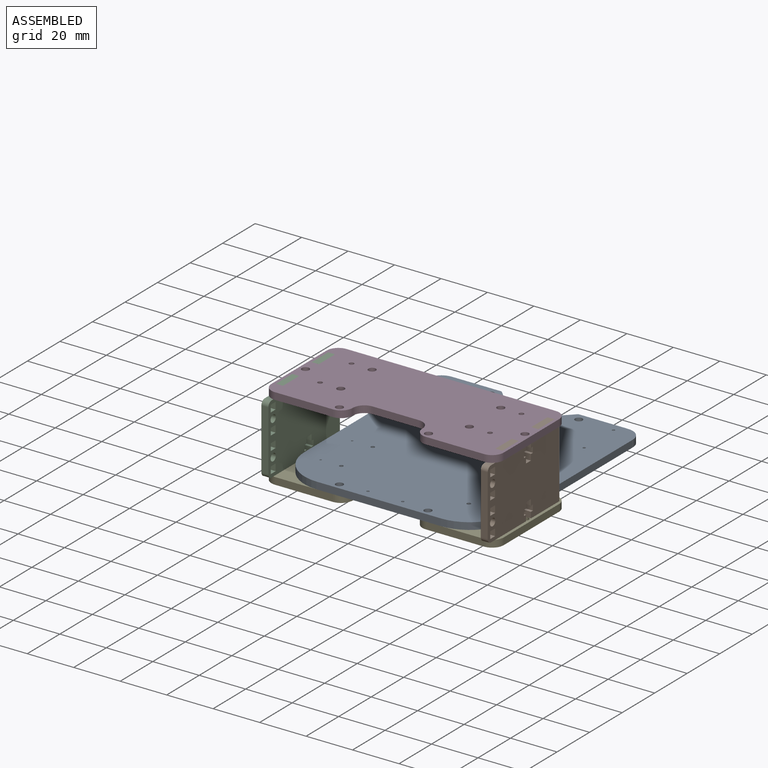
[diagram: assembled view]
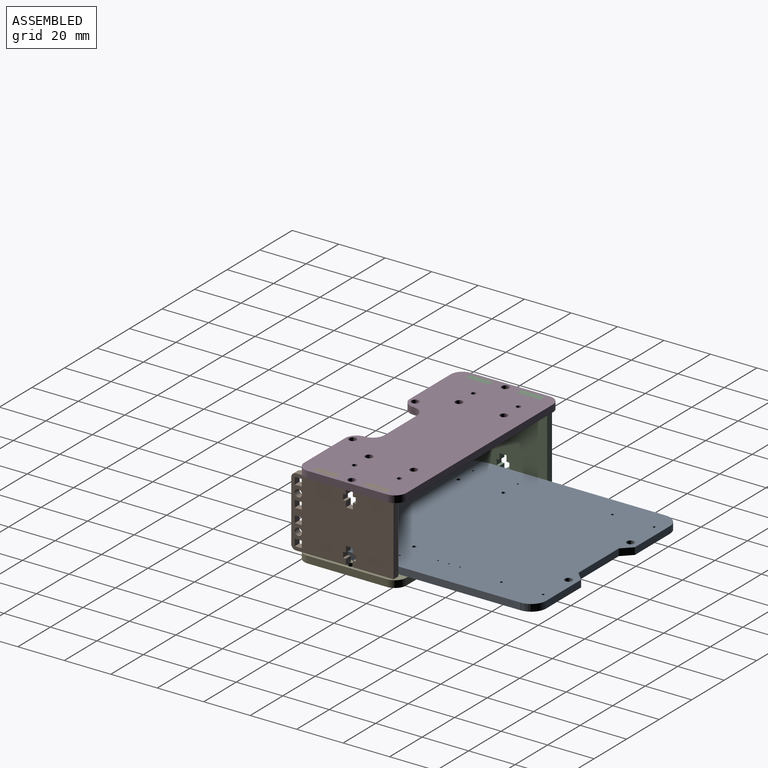
[diagram: assembled view, second angle]
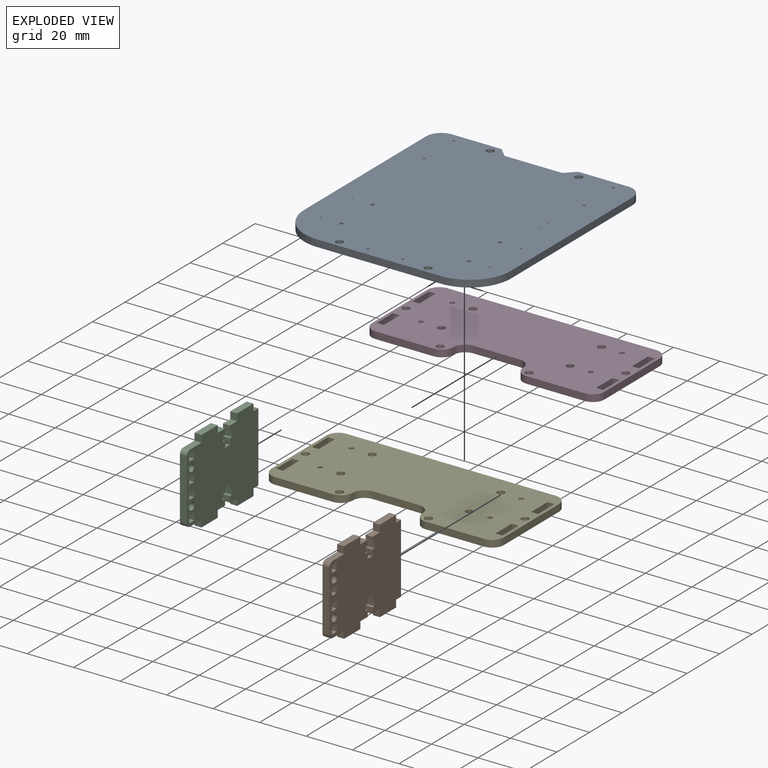
[diagram: exploded view]
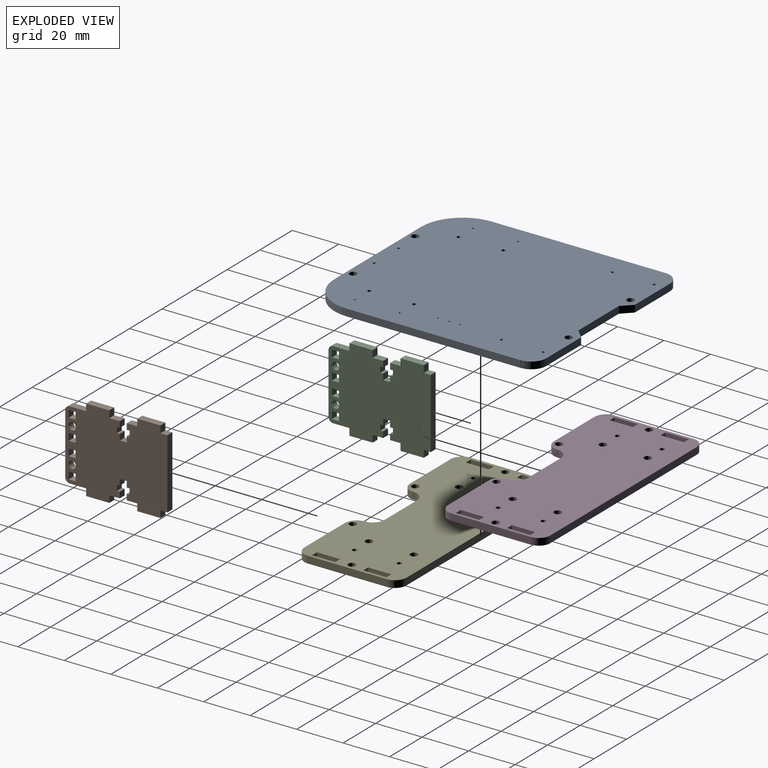
[diagram: exploded view, second angle]
ASSEMBLY  parts=5 mates=4
PART A: 47 faces, bbox 88.9x99.1x3 mm
  f0: cylinder r=0.06mm len=3mm, axis (0,0,-1), area 0.6mm2, adj f1,f37,f45,f46
  f1: cylinder r=6.5mm len=6.43mm, axis (0,0,-1), area 30.2mm2, adj f0,f2,f45,f46
  f2: cylinder r=0.06mm len=3mm, axis (0,0,-1), area 0.6mm2, adj f1,f3,f45,f46
  f3: plane 74.66x3mm, normal (-1,0,0), area 224mm2, adj f2,f4,f45,f46
  f4: cylinder r=0.06mm len=3mm, axis (0,0,-1), area 0.6mm2, adj f3,f5,f45,f46
  f5: cylinder r=17.78mm len=17.71mm, axis (0,0,-1), area 83.4mm2, adj f4,f6,f45,f46
  f6: cylinder r=0.06mm len=3mm, axis (0,0,-1), area 0.6mm2, adj f5,f7,f45,f46
  f7: plane 53.24x3mm, normal (0,-1,0), area 159.7mm2, adj f6,f8,f45,f46
  f8: cylinder r=0.06mm len=3mm, axis (0,0,-1), area 0.6mm2, adj f7,f9,f45,f46
  f9: cylinder r=17.76mm len=17.69mm, axis (0,0,-1), area 83.3mm2, adj f8,f10,f45,f46
  f10: cylinder r=0.06mm len=3mm, axis (0,0,-1), area 0.6mm2, adj f9,f11,f45,f46
  f11: plane 74.68x3mm, normal (1,0,0), area 224mm2, adj f10,f12,f45,f46
  f12: cylinder r=0.06mm len=3mm, axis (0,0,-1), area 0.6mm2, adj f11,f13,f45,f46
  f13: cylinder r=6.5mm len=6.43mm, axis (0,0,-1), area 30.2mm2, adj f12,f14,f45,f46
  f14: cylinder r=0.06mm len=3mm, axis (0,0,-1), area 0.6mm2, adj f13,f15,f45,f46
  f15: plane 21.32x3mm, normal (0,1,0), area 63.9mm2, adj f14,f16,f45,f46
  f16: cylinder r=0.06mm len=3mm, axis (0,0,-1), area 0.4mm2, adj f15,f17,f45,f46
  f17: plane 3.97x3.97mm, normal (-0.71,0.71,0), area 16.9mm2, adj f16,f18,f45,f46
  f18: cylinder r=0.06mm len=3mm, axis (0,0,-1), area 0.7mm2, adj f17,f19,f45,f46
  f19: plane 24.77x3mm, normal (0,1,0), area 74.3mm2, adj f18,f20,f45,f46
  f20: cylinder r=0.06mm len=3mm, axis (0,0,-1), area 0.7mm2, adj f19,f21,f45,f46
  f21: plane 3.97x3.97mm, normal (0.71,0.71,0), area 16.9mm2, adj f20,f22,f45,f46
  f22: cylinder r=0.06mm len=3mm, axis (0,0,-1), area 0.4mm2, adj f21,f37,f45,f46
  f23: cylinder r=1.6mm len=3.2mm, axis (0,0,-1), area 30.2mm2, adj f45,f46
  f24: cylinder r=1.6mm len=3.2mm, axis (0,0,-1), area 30.2mm2, adj f45,f46
  f25: cylinder r=1.6mm len=3.2mm, axis (0,0,-1), area 30.2mm2, adj f45,f46
  f26: cylinder r=0.35mm len=3mm, axis (0,0,-1), area 6.6mm2, adj f45,f46
  f27: cylinder r=0.35mm len=3mm, axis (0,0,-1), area 6.6mm2, adj f45,f46
  f28: cylinder r=0.35mm len=3mm, axis (0,0,-1), area 6.6mm2, adj f45,f46
  f29: cylinder r=0.8mm len=3mm, axis (0,0,-1), area 15.1mm2, adj f45,f46
  f30: cylinder r=0.8mm len=3mm, axis (0,0,-1), area 15.1mm2, adj f45,f46
  f31: cylinder r=0.8mm len=3mm, axis (0,0,-1), area 15.1mm2, adj f45,f46
  f32: cylinder r=0.8mm len=3mm, axis (0,0,-1), area 15.1mm2, adj f45,f46
  f33: cylinder r=0.4mm len=3mm, axis (0,0,-1), area 7.5mm2, adj f45,f46
  f34: cylinder r=0.4mm len=3mm, axis (0,0,-1), area 7.5mm2, adj f45,f46
  f35: cylinder r=0.4mm len=3mm, axis (0,0,-1), area 7.5mm2, adj f45,f46
  f36: cylinder r=0.4mm len=3mm, axis (0,0,-1), area 7.5mm2, adj f45,f46
  f37: plane 21.32x3mm, normal (0,1,0), area 63.9mm2, adj f0,f22,f45,f46
  f38: cylinder r=0.58mm len=3mm, axis (0,0,-1), area 10.8mm2, adj f45,f46
  f39: cylinder r=0.58mm len=3mm, axis (0,0,-1), area 10.8mm2, adj f45,f46
  f40: cylinder r=0.58mm len=3mm, axis (0,0,-1), area 10.8mm2, adj f45,f46
  f41: cylinder r=0.58mm len=3mm, axis (0,0,-1), area 10.8mm2, adj f45,f46
  f42: cylinder r=0.58mm len=3mm, axis (0,0,-1), area 10.8mm2, adj f45,f46
  f43: cylinder r=0.58mm len=3mm, axis (0,0,-1), area 10.8mm2, adj f45,f46
  f44: cylinder r=1.6mm len=3.2mm, axis (0,0,-1), area 30.2mm2, adj f45,f46
  f45: plane 99.06x88.9mm, normal (0,0,1), area 8485.5mm2, adj f0,f1,f2,f3,f4,f5,f6,f7
  f46: plane 99.06x88.9mm, normal (0,0,-1), area 8485.5mm2, adj f0,f1,f2,f3,f4,f5,f6,f7
PART B: 66 faces, bbox 3x44x36 mm
  f0: plane 3x3mm, normal (0,0,1), area 9mm2, adj f1,f61,f62,f63
  f1: plane 3x3mm, normal (0,-1,0), area 9mm2, adj f0,f2,f62,f63
  f2: plane 3x3mm, normal (0,0,-1), area 9mm2, adj f1,f61,f62,f63
  f3: plane 3x3mm, normal (0,-1,0), area 9mm2, adj f4,f55,f62,f63
  f4: plane 3x3mm, normal (0,0,-1), area 9mm2, adj f3,f5,f62,f63
  f5: plane 3x3mm, normal (0,1,0), area 9mm2, adj f4,f55,f62,f63
  f6: plane 3x3mm, normal (0,1,0), area 9mm2, adj f7,f58,f62,f63
  f7: plane 3x3mm, normal (0,0,1), area 9mm2, adj f6,f8,f62,f63
  f8: plane 3x3mm, normal (0,-1,0), area 9mm2, adj f7,f58,f62,f63
  f9: plane 3x3mm, normal (0,0,1), area 9mm2, adj f10,f59,f62,f63
  f10: plane 3x3mm, normal (0,-1,0), area 9mm2, adj f9,f11,f62,f63
  f11: plane 3x3mm, normal (0,0,-1), area 9mm2, adj f10,f59,f62,f63
  f12: plane 3x3mm, normal (0,1,0), area 9mm2, adj f13,f60,f62,f63
  f13: plane 3x3mm, normal (0,0,1), area 9mm2, adj f12,f14,f62,f63
  f14: plane 30x3mm, normal (0,1,0), area 90mm2, adj f13,f15,f62,f63
  f15: plane 3x3mm, normal (0,0,-1), area 9mm2, adj f14,f16,f62,f63
  f16: plane 3x3mm, normal (0,1,0), area 9mm2, adj f15,f17,f62,f63
  f17: plane 10x3mm, normal (0,0,-1), area 30mm2, adj f16,f18,f62,f63
  f18: plane 3x3mm, normal (0,-1,0), area 9mm2, adj f17,f19,f62,f63
  f19: plane 4.5x3mm, normal (0,0,-1), area 13.5mm2, adj f18,f20,f62,f63
  f20: plane 3x2.55mm, normal (0,-1,0), area 7.7mm2, adj f19,f21,f62,f63
  f21: plane 3x1.25mm, normal (0,0,1), area 3.7mm2, adj f20,f22,f62,f63
  f22: plane 3x2.4mm, normal (0,-1,0), area 7.2mm2, adj f21,f23,f62,f63
  f23: plane 3x1.25mm, normal (0,0,-1), area 3.7mm2, adj f22,f24,f62,f63
  f24: plane 3x2.55mm, normal (0,-1,0), area 7.7mm2, adj f23,f25,f62,f63
  f25: plane 3x3mm, normal (0,0,-1), area 9mm2, adj f24,f26,f62,f63
  f26: plane 3x2.55mm, normal (0,1,0), area 7.7mm2, adj f25,f27,f62,f63
  f27: plane 3x1.25mm, normal (0,0,-1), area 3.7mm2, adj f26,f28,f62,f63
  f28: plane 3x2.4mm, normal (0,1,0), area 7.2mm2, adj f27,f29,f62,f63
  f29: plane 3x1.25mm, normal (0,0,1), area 3.7mm2, adj f28,f30,f62,f63
  f30: plane 3x2.55mm, normal (0,1,0), area 7.7mm2, adj f29,f31,f62,f63
  f31: plane 4.5x3mm, normal (0,0,-1), area 13.5mm2, adj f30,f32,f62,f63
  f32: plane 3x3mm, normal (0,1,0), area 9mm2, adj f31,f33,f62,f63
  f33: plane 10x3mm, normal (0,0,-1), area 30mm2, adj f32,f34,f62,f63
  f34: plane 3x3mm, normal (0,-1,0), area 9mm2, adj f33,f35,f62,f63
  f35: plane 7x3mm, normal (0,0,-1), area 21mm2, adj f34,f62,f63,f64
  f36: plane 26x3mm, normal (0,-1,0), area 78mm2, adj f62,f63,f64,f65
  f37: plane 7x3mm, normal (0,0,1), area 21mm2, adj f38,f62,f63,f65
  f38: plane 3x3mm, normal (0,-1,0), area 9mm2, adj f37,f39,f62,f63
  f39: plane 10x3mm, normal (0,0,1), area 30mm2, adj f38,f40,f62,f63
  f40: plane 3x3mm, normal (0,1,0), area 9mm2, adj f39,f41,f62,f63
  f41: plane 4.5x3mm, normal (0,0,1), area 13.5mm2, adj f40,f42,f62,f63
  f42: plane 3x2.55mm, normal (0,1,0), area 7.7mm2, adj f41,f43,f62,f63
  f43: plane 3x1.25mm, normal (0,0,-1), area 3.7mm2, adj f42,f44,f62,f63
  f44: plane 3x2.4mm, normal (0,1,0), area 7.2mm2, adj f43,f45,f62,f63
  f45: plane 3x1.25mm, normal (0,0,1), area 3.7mm2, adj f44,f46,f62,f63
  f46: plane 3x2.55mm, normal (0,1,0), area 7.7mm2, adj f45,f47,f62,f63
  f47: plane 3x3mm, normal (0,0,1), area 9mm2, adj f46,f48,f62,f63
  f48: plane 3x2.55mm, normal (0,-1,0), area 7.7mm2, adj f47,f49,f62,f63
  f49: plane 3x1.25mm, normal (0,0,1), area 3.7mm2, adj f48,f50,f62,f63
  f50: plane 3x2.4mm, normal (0,-1,0), area 7.2mm2, adj f49,f51,f62,f63
  f51: plane 3x1.25mm, normal (0,0,-1), area 3.7mm2, adj f50,f52,f62,f63
  f52: plane 3x2.55mm, normal (0,-1,0), area 7.7mm2, adj f51,f53,f62,f63
  f53: plane 4.5x3mm, normal (0,0,1), area 13.5mm2, adj f52,f54,f62,f63
  f54: plane 3x3mm, normal (0,-1,0), area 9mm2, adj f53,f60,f62,f63
  f55: plane 3x3mm, normal (0,0,1), area 9mm2, adj f3,f5,f62,f63
  f56: cylinder r=1.6mm len=3.2mm, axis (1,0,0), area 30.2mm2, adj f62,f63
  f57: cylinder r=1.6mm len=3.2mm, axis (1,0,0), area 30.2mm2, adj f62,f63
  f58: plane 3x3mm, normal (0,0,-1), area 9mm2, adj f6,f8,f62,f63
  f59: plane 3x3mm, normal (0,1,0), area 9mm2, adj f9,f11,f62,f63
  f60: plane 10x3mm, normal (0,0,1), area 30mm2, adj f12,f54,f62,f63
  f61: plane 3x3mm, normal (0,1,0), area 9mm2, adj f0,f2,f62,f63
  f62: plane 44x36mm, normal (-1,0,0), area 1329.3mm2, adj f0,f1,f2,f3,f4,f5,f6,f7
  f63: plane 44x36mm, normal (1,0,0), area 1329.3mm2, adj f0,f1,f2,f3,f4,f5,f6,f7
  f64: cylinder r=2mm len=3mm, axis (-1,0,0), area 9.4mm2, adj f35,f36,f62,f63
  f65: cylinder r=2mm len=3mm, axis (1,0,0), area 9.4mm2, adj f36,f37,f62,f63
PART C: same geometry as B
PART D: 44 faces, bbox 100x44x3 mm
  f0: plane 3x3mm, normal (0,1,0), area 9mm2, adj f1,f26,f34,f35
  f1: plane 10x3mm, normal (1,0,0), area 30mm2, adj f0,f2,f34,f35
  f2: plane 3x3mm, normal (0,-1,0), area 9mm2, adj f1,f26,f34,f35
  f3: plane 3x3mm, normal (0,-1,0), area 9mm2, adj f4,f27,f34,f35
  f4: plane 10x3mm, normal (-1,0,0), area 30mm2, adj f3,f5,f34,f35
  f5: plane 3x3mm, normal (0,1,0), area 9mm2, adj f4,f27,f34,f35
  f6: plane 10x3mm, normal (1,0,0), area 30mm2, adj f7,f30,f34,f35
  f7: plane 3x3mm, normal (0,-1,0), area 9mm2, adj f6,f8,f34,f35
  f8: plane 10x3mm, normal (-1,0,0), area 30mm2, adj f7,f30,f34,f35
  f9: plane 3x3mm, normal (0,1,0), area 9mm2, adj f10,f31,f34,f35
  f10: plane 10x3mm, normal (1,0,0), area 30mm2, adj f9,f11,f34,f35
  f11: plane 3x3mm, normal (0,-1,0), area 9mm2, adj f10,f31,f34,f35
  f12: plane 25x3mm, normal (0,-1,0), area 75mm2, adj f34,f35,f36,f42
  f13: plane 34x3mm, normal (1,0,0), area 102mm2, adj f34,f35,f36,f37
  f14: plane 90x3mm, normal (0,1,0), area 270mm2, adj f34,f35,f37,f38
  f15: plane 34x3mm, normal (-1,0,0), area 102mm2, adj f34,f35,f38,f39
  f16: plane 25x3mm, normal (0,-1,0), area 75mm2, adj f34,f35,f39,f41
  f17: cylinder r=1.6mm len=3.2mm, axis (0,0,-1), area 30.2mm2, adj f34,f35
  f18: cylinder r=1mm len=3mm, axis (0,0,-1), area 18.8mm2, adj f34,f35
  f19: cylinder r=1mm len=3mm, axis (0,0,-1), area 18.8mm2, adj f34,f35
  f20: cylinder r=1mm len=3mm, axis (0,0,-1), area 18.8mm2, adj f34,f35
  f21: cylinder r=1.6mm len=3.2mm, axis (0,0,-1), area 30.2mm2, adj f34,f35
  f22: cylinder r=1.6mm len=3.2mm, axis (0,0,-1), area 30.2mm2, adj f34,f35
  f23: cylinder r=1.6mm len=3.2mm, axis (0,0,-1), area 30.2mm2, adj f34,f35
  f24: cylinder r=1mm len=3mm, axis (0,0,-1), area 18.8mm2, adj f34,f35
  f25: cylinder r=1.6mm len=3.2mm, axis (0,0,-1), area 30.2mm2, adj f34,f35
  f26: plane 10x3mm, normal (-1,0,0), area 30mm2, adj f0,f2,f34,f35
  f27: plane 10x3mm, normal (1,0,0), area 30mm2, adj f3,f5,f34,f35
  f28: cylinder r=1.6mm len=3.2mm, axis (0,0,-1), area 30.2mm2, adj f34,f35
  f29: cylinder r=1.6mm len=3.2mm, axis (0,0,-1), area 30.2mm2, adj f34,f35
  f30: plane 3x3mm, normal (0,1,0), area 9mm2, adj f6,f8,f34,f35
  f31: plane 10x3mm, normal (-1,0,0), area 30mm2, adj f9,f11,f34,f35
  f32: plane 20x3mm, normal (0,-1,0), area 60mm2, adj f34,f35,f40,f43
  f33: cylinder r=1.6mm len=3.2mm, axis (0,0,-1), area 30.2mm2, adj f34,f35
  f34: plane 100x44mm, normal (0,0,1), area 3881.6mm2, adj f0,f1,f2,f3,f4,f5,f6,f7
  f35: plane 100x44mm, normal (0,0,-1), area 3881.6mm2, adj f0,f1,f2,f3,f4,f5,f6,f7
  f36: cylinder r=5mm len=5mm, axis (0,0,-1), area 23.6mm2, adj f12,f13,f34,f35
  f37: cylinder r=5mm len=5mm, axis (0,0,-1), area 23.6mm2, adj f13,f14,f34,f35
  f38: cylinder r=5mm len=5mm, axis (0,0,1), area 23.6mm2, adj f14,f15,f34,f35
  f39: cylinder r=5mm len=5mm, axis (0,0,-1), area 23.6mm2, adj f15,f16,f34,f35
  f40: cylinder r=5mm len=5mm, axis (0,0,-1), area 23.6mm2, adj f32,f34,f35,f41
  f41: cylinder r=5mm len=5mm, axis (0,0,-1), area 23.6mm2, adj f16,f34,f35,f40
  f42: cylinder r=5mm len=5mm, axis (0,0,-1), area 23.6mm2, adj f12,f34,f35,f43
  f43: cylinder r=5mm len=5mm, axis (0,0,1), area 23.6mm2, adj f32,f34,f35,f42
PART E: same geometry as D
PLACE A t=(18.15,31.18,-15.21)mm
PLACE B t=(112.84,31.18,11.79)mm
PLACE C t=(18.4,31.18,11.79)mm
PLACE D t=(18.4,31.18,11.79)mm
PLACE E t=(18.4,31.18,-21.21)mm
MATE fastened C.f38 <-> D.f5  axis (0,-1,0) through (-28.82,-12.35,16.29)mm
MATE fastened E.f30 <-> B.f34  axis (0,1,0) through (65.62,-12.35,-16.71)mm
MATE fastened A.f23 <-> E.f23  axis (0,0,-1) through (-0.77,-15.56,-15.21)mm
MATE fastened E.f5 <-> C.f34  axis (0,1,0) through (-28.82,-12.35,-16.71)mm
